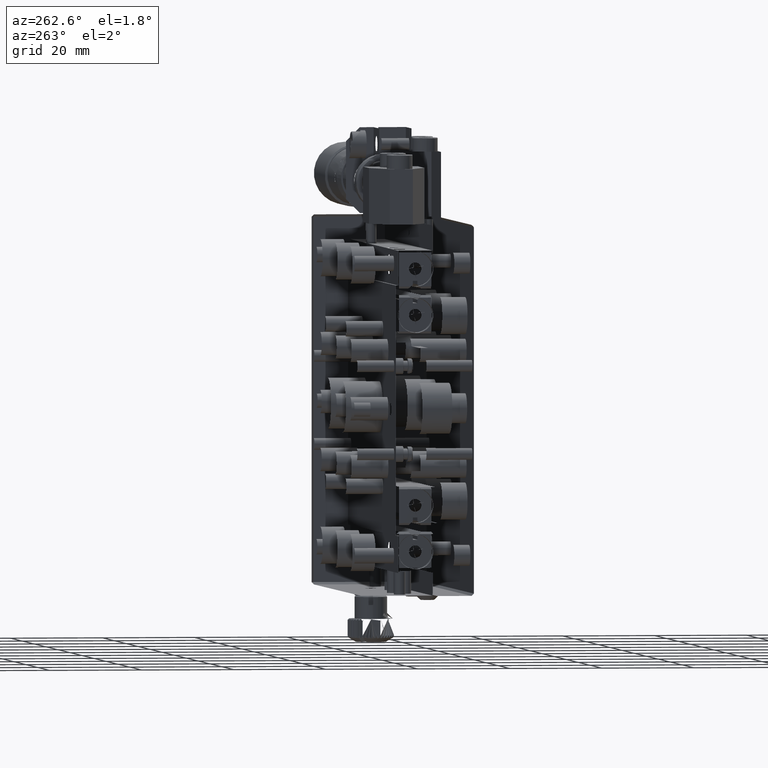
[diagram: clean part render]
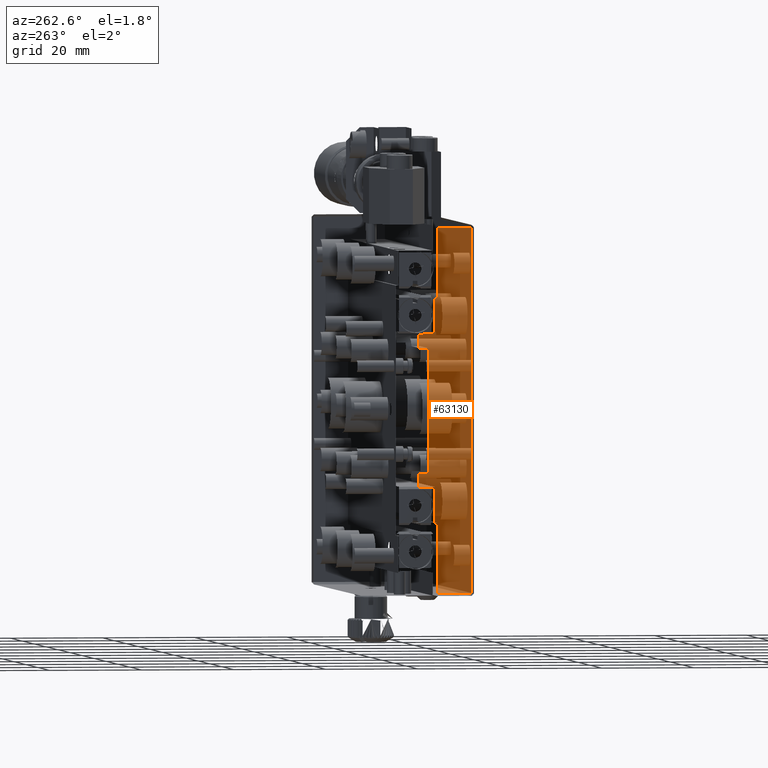
[diagram: same view with one face highlighted and labeled with its STEP entity id]
A machine part, auxiliary view. The second image highlights one B-rep face of the part: STEP entity #63130.
In plain terms, the highlighted planar face has unit normal (1, -0, 0).
Its self-contained STEP definition (entity closure, byte-faithful):
#856 = CARTESIAN_POINT ( 'NONE',  ( -40.00000000000000000, 0.5000000000000108800, 39.49999999999998600 ) ) ;
#1572 = CARTESIAN_POINT ( 'NONE',  ( -40.00000000000000000, 11.99999999999999600, -16.50000000000000000 ) ) ;
#1622 = VERTEX_POINT ( 'NONE', #28869 ) ;
#2088 = DIRECTION ( 'NONE',  ( -0.0000000000000000000, -0.0000000000000000000, 1.000000000000000000 ) ) ;
#2212 = DIRECTION ( 'NONE',  ( -0.0000000000000000000, -1.000000000000000000, -0.0000000000000000000 ) ) ;
#2316 = CARTESIAN_POINT ( 'NONE',  ( -40.00000000000000000, 8.499999999999994700, -40.00000000000000000 ) ) ;
#2366 = FACE_OUTER_BOUND ( 'NONE', #13357, .T. ) ;
#2616 = VERTEX_POINT ( 'NONE', #17087 ) ;
#3148 = EDGE_CURVE ( 'NONE', #48919, #34178, #29325, .T. ) ;
#3432 = CARTESIAN_POINT ( 'NONE',  ( -40.00000000000000000, 8.000000000000000000, -24.25000000000000000 ) ) ;
#3673 = DIRECTION ( 'NONE',  ( 1.000000000000000000, -0.0000000000000000000, 0.0000000000000000000 ) ) ;
#4398 = DIRECTION ( 'NONE',  ( 0.0000000000000000000, -0.0000000000000000000, -1.000000000000000000 ) ) ;
#6560 = ORIENTED_EDGE ( 'NONE', *, *, #32653, .F. ) ;
#7480 = EDGE_CURVE ( 'NONE', #44695, #25232, #7707, .T. ) ;
#7624 = VECTOR ( 'NONE', #38309, 1000.000000000000000 ) ;
#7707 = LINE ( 'NONE', #1572, #58343 ) ;
#7913 = VECTOR ( 'NONE', #37973, 1000.000000000000000 ) ;
#8626 = CARTESIAN_POINT ( 'NONE',  ( -40.00000000000000000, 10.00000000000000200, -13.50000000000000000 ) ) ;
#8862 = VERTEX_POINT ( 'NONE', #50939 ) ;
#9110 = DIRECTION ( 'NONE',  ( -0.0000000000000000000, -0.0000000000000000000, 1.000000000000000000 ) ) ;
#9401 = EDGE_CURVE ( 'NONE', #46678, #44695, #12197, .T. ) ;
#9937 = ORIENTED_EDGE ( 'NONE', *, *, #30384, .T. ) ;
#10475 = ORIENTED_EDGE ( 'NONE', *, *, #45346, .T. ) ;
#12033 = CARTESIAN_POINT ( 'NONE',  ( -40.00000000000000000, 8.000000000000000000, 24.25000000000000000 ) ) ;
#12154 = EDGE_CURVE ( 'NONE', #14933, #1622, #40735, .T. ) ;
#12197 = LINE ( 'NONE', #29839, #49897 ) ;
#13357 = EDGE_LOOP ( 'NONE', ( #50013, #28189, #44466, #27648, #34790, #9937, #62674, #62059, #37805, #31674, #45635, #28161, #10475, #50259, #6560, #58819 ) ) ;
#13435 = PLANE ( 'NONE',  #50746 ) ;
#14365 = VECTOR ( 'NONE', #51532, 1000.000000000000000 ) ;
#14933 = VERTEX_POINT ( 'NONE', #59037 ) ;
#15461 = EDGE_CURVE ( 'NONE', #57425, #2616, #58537, .T. ) ;
#17087 = CARTESIAN_POINT ( 'NONE',  ( -40.00000000000000000, 7.999999999999996400, -39.49999999999998600 ) ) ;
#17600 = DIRECTION ( 'NONE',  ( 0.0000000000000000000, -0.0000000000000000000, -1.000000000000000000 ) ) ;
#17685 = CARTESIAN_POINT ( 'NONE',  ( -40.00000000000000000, 10.00000000000000200, 13.50000000000000000 ) ) ;
#17911 = LINE ( 'NONE', #28450, #29560 ) ;
#18513 = VECTOR ( 'NONE', #48181, 1000.000000000000000 ) ;
#18771 = EDGE_CURVE ( 'NONE', #40632, #14933, #46991, .T. ) ;
#20051 = LINE ( 'NONE', #48590, #18513 ) ;
#22451 = VECTOR ( 'NONE', #26423, 1000.000000000000000 ) ;
#22557 = VECTOR ( 'NONE', #22797, 1000.000000000000000 ) ;
#22797 = DIRECTION ( 'NONE',  ( -0.0000000000000000000, -0.0000000000000000000, 1.000000000000000000 ) ) ;
#22862 = CARTESIAN_POINT ( 'NONE',  ( -40.00000000000000000, 8.500000000000005300, -40.00000000000000000 ) ) ;
#22972 = LINE ( 'NONE', #38575, #43097 ) ;
#24119 = LINE ( 'NONE', #22862, #22557 ) ;
#24316 = CARTESIAN_POINT ( 'NONE',  ( -40.00000000000000000, 7.999999999999996400, 39.49999999999998600 ) ) ;
#24521 = LINE ( 'NONE', #3432, #37706 ) ;
#24632 = DIRECTION ( 'NONE',  ( -0.0000000000000000000, -1.000000000000000000, -0.0000000000000000000 ) ) ;
#24813 = VERTEX_POINT ( 'NONE', #61782 ) ;
#25232 = VERTEX_POINT ( 'NONE', #41027 ) ;
#25926 = DIRECTION ( 'NONE',  ( 0.0000000000000000000, 1.000000000000000000, 0.0000000000000000000 ) ) ;
#25984 = CARTESIAN_POINT ( 'NONE',  ( -40.00000000000000000, 0.0000000000000000000, 39.49999999999998600 ) ) ;
#26423 = DIRECTION ( 'NONE',  ( -0.0000000000000000000, -0.0000000000000000000, 1.000000000000000000 ) ) ;
#26758 = CARTESIAN_POINT ( 'NONE',  ( -40.00000000000000000, 8.000000000000000000, -40.00000000000000000 ) ) ;
#26975 = CARTESIAN_POINT ( 'NONE',  ( -40.00000000000000000, 8.500000000000003600, 24.25000000000000000 ) ) ;
#27648 = ORIENTED_EDGE ( 'NONE', *, *, #54346, .T. ) ;
#27914 = LINE ( 'NONE', #25984, #39519 ) ;
#28161 = ORIENTED_EDGE ( 'NONE', *, *, #12154, .T. ) ;
#28189 = ORIENTED_EDGE ( 'NONE', *, *, #33324, .F. ) ;
#28450 = CARTESIAN_POINT ( 'NONE',  ( -40.00000000000000000, 0.0000000000000000000, -16.50000000000000000 ) ) ;
#28869 = CARTESIAN_POINT ( 'NONE',  ( -40.00000000000000000, 11.99999999999999600, 16.50000000000000000 ) ) ;
#29325 = LINE ( 'NONE', #2316, #56735 ) ;
#29560 = VECTOR ( 'NONE', #25926, 1000.000000000000000 ) ;
#29839 = CARTESIAN_POINT ( 'NONE',  ( -40.00000000000000000, 10.00000000000000200, -13.50000000000000000 ) ) ;
#30223 = LINE ( 'NONE', #34630, #31769 ) ;
#30384 = EDGE_CURVE ( 'NONE', #8862, #58385, #24119, .T. ) ;
#30760 = DIRECTION ( 'NONE',  ( 0.0000000000000000000, 1.000000000000000000, 0.0000000000000000000 ) ) ;
#31581 = EDGE_CURVE ( 'NONE', #58385, #25232, #17911, .T. ) ;
#31674 = ORIENTED_EDGE ( 'NONE', *, *, #36051, .F. ) ;
#31769 = VECTOR ( 'NONE', #33564, 1000.000000000000000 ) ;
#32653 = EDGE_CURVE ( 'NONE', #45299, #34178, #30223, .T. ) ;
#32837 = EDGE_CURVE ( 'NONE', #45299, #53387, #35647, .T. ) ;
#33324 = EDGE_CURVE ( 'NONE', #57425, #44348, #20051, .T. ) ;
#33406 = CARTESIAN_POINT ( 'NONE',  ( -40.00000000000000000, 0.0000000000000000000, -40.00000000000000000 ) ) ;
#33564 = DIRECTION ( 'NONE',  ( 0.0000000000000000000, 1.000000000000000000, 0.0000000000000000000 ) ) ;
#34178 = VERTEX_POINT ( 'NONE', #26975 ) ;
#34630 = CARTESIAN_POINT ( 'NONE',  ( -40.00000000000000000, 8.500000000000005300, 24.25000000000000000 ) ) ;
#34790 = ORIENTED_EDGE ( 'NONE', *, *, #54252, .F. ) ;
#35015 = CARTESIAN_POINT ( 'NONE',  ( -40.00000000000000000, 8.500000000000001800, -16.50000000000000000 ) ) ;
#35647 = LINE ( 'NONE', #26758, #22451 ) ;
#36051 = EDGE_CURVE ( 'NONE', #40632, #46678, #56605, .T. ) ;
#36073 = VECTOR ( 'NONE', #2212, 1000.000000000000000 ) ;
#37706 = VECTOR ( 'NONE', #38137, 1000.000000000000000 ) ;
#37805 = ORIENTED_EDGE ( 'NONE', *, *, #9401, .F. ) ;
#37973 = DIRECTION ( 'NONE',  ( 0.0000000000000000000, 1.000000000000000000, 0.0000000000000000000 ) ) ;
#38137 = DIRECTION ( 'NONE',  ( 0.0000000000000000000, -1.000000000000000000, -0.0000000000000000000 ) ) ;
#38309 = DIRECTION ( 'NONE',  ( 0.0000000000000000000, 1.000000000000000000, 0.0000000000000000000 ) ) ;
#38312 = CARTESIAN_POINT ( 'NONE',  ( -40.00000000000000000, 0.0000000000000000000, -39.49999999999998600 ) ) ;
#38359 = DIRECTION ( 'NONE',  ( 0.0000000000000000000, 0.0000000000000000000, -1.000000000000000000 ) ) ;
#38373 = CARTESIAN_POINT ( 'NONE',  ( -39.99999999999999300, 0.5000000000000125500, -39.50000000000000000 ) ) ;
#38575 = CARTESIAN_POINT ( 'NONE',  ( -40.00000000000000000, 7.999999999999994700, -40.00000000000000000 ) ) ;
#38891 = EDGE_CURVE ( 'NONE', #53387, #44348, #27914, .T. ) ;
#39519 = VECTOR ( 'NONE', #24632, 1000.000000000000000 ) ;
#40388 = CARTESIAN_POINT ( 'NONE',  ( -40.00000000000000000, 0.0000000000000000000, 13.49999999999999800 ) ) ;
#40632 = VERTEX_POINT ( 'NONE', #54085 ) ;
#40735 = LINE ( 'NONE', #51628, #14365 ) ;
#40786 = VECTOR ( 'NONE', #17600, 1000.000000000000000 ) ;
#41027 = CARTESIAN_POINT ( 'NONE',  ( -40.00000000000000000, 11.99999999999999600, -16.50000000000000000 ) ) ;
#43097 = VECTOR ( 'NONE', #9110, 1000.000000000000000 ) ;
#44348 = VERTEX_POINT ( 'NONE', #856 ) ;
#44466 = ORIENTED_EDGE ( 'NONE', *, *, #15461, .T. ) ;
#44695 = VERTEX_POINT ( 'NONE', #57795 ) ;
#45299 = VERTEX_POINT ( 'NONE', #12033 ) ;
#45346 = EDGE_CURVE ( 'NONE', #1622, #48919, #53534, .T. ) ;
#45635 = ORIENTED_EDGE ( 'NONE', *, *, #18771, .T. ) ;
#46012 = CARTESIAN_POINT ( 'NONE',  ( -40.00000000000000000, 8.499999999999994700, 16.50000000000000000 ) ) ;
#46678 = VERTEX_POINT ( 'NONE', #8626 ) ;
#46991 = LINE ( 'NONE', #40388, #7624 ) ;
#48181 = DIRECTION ( 'NONE',  ( 0.0000000000000000000, -0.0000000000000000000, 1.000000000000000000 ) ) ;
#48590 = CARTESIAN_POINT ( 'NONE',  ( -40.00000000000000000, 0.5000000000000143200, 40.00000000000000000 ) ) ;
#48919 = VERTEX_POINT ( 'NONE', #46012 ) ;
#49897 = VECTOR ( 'NONE', #30760, 1000.000000000000000 ) ;
#50013 = ORIENTED_EDGE ( 'NONE', *, *, #38891, .T. ) ;
#50259 = ORIENTED_EDGE ( 'NONE', *, *, #3148, .T. ) ;
#50746 = AXIS2_PLACEMENT_3D ( 'NONE', #33406, #3673, #38359 ) ;
#50939 = CARTESIAN_POINT ( 'NONE',  ( -40.00000000000000000, 8.500000000000005300, -24.25000000000000400 ) ) ;
#51346 = CARTESIAN_POINT ( 'NONE',  ( -40.00000000000000000, 0.0000000000000000000, 16.50000000000000000 ) ) ;
#51532 = DIRECTION ( 'NONE',  ( -0.0000000000000000000, -0.0000000000000000000, 1.000000000000000000 ) ) ;
#51628 = CARTESIAN_POINT ( 'NONE',  ( -40.00000000000000000, 11.99999999999999600, -40.00000000000000000 ) ) ;
#53387 = VERTEX_POINT ( 'NONE', #24316 ) ;
#53534 = LINE ( 'NONE', #51346, #36073 ) ;
#54085 = CARTESIAN_POINT ( 'NONE',  ( -40.00000000000000000, 10.00000000000000200, 13.49999999999999800 ) ) ;
#54252 = EDGE_CURVE ( 'NONE', #8862, #24813, #24521, .T. ) ;
#54346 = EDGE_CURVE ( 'NONE', #2616, #24813, #22972, .T. ) ;
#56605 = LINE ( 'NONE', #17685, #40786 ) ;
#56735 = VECTOR ( 'NONE', #2088, 1000.000000000000000 ) ;
#57425 = VERTEX_POINT ( 'NONE', #38373 ) ;
#57795 = CARTESIAN_POINT ( 'NONE',  ( -40.00000000000000000, 11.99999999999999600, -13.50000000000000000 ) ) ;
#58343 = VECTOR ( 'NONE', #4398, 1000.000000000000000 ) ;
#58385 = VERTEX_POINT ( 'NONE', #35015 ) ;
#58537 = LINE ( 'NONE', #38312, #7913 ) ;
#58819 = ORIENTED_EDGE ( 'NONE', *, *, #32837, .T. ) ;
#59037 = CARTESIAN_POINT ( 'NONE',  ( -40.00000000000000000, 11.99999999999999600, 13.49999999999999800 ) ) ;
#61782 = CARTESIAN_POINT ( 'NONE',  ( -40.00000000000000000, 7.999999999999998200, -24.25000000000000000 ) ) ;
#62059 = ORIENTED_EDGE ( 'NONE', *, *, #7480, .F. ) ;
#62674 = ORIENTED_EDGE ( 'NONE', *, *, #31581, .T. ) ;
#63130 = ADVANCED_FACE ( 'NONE', ( #2366 ), #13435, .T. ) ;